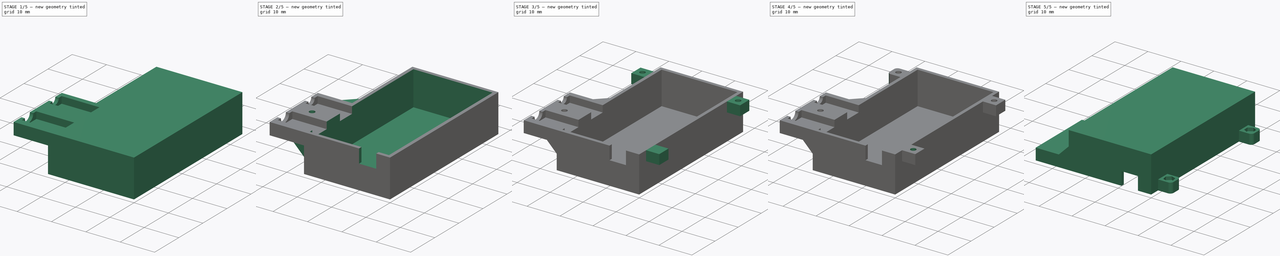
[diagram: build sequence overview — one tinted view per stage of 5, left to right]
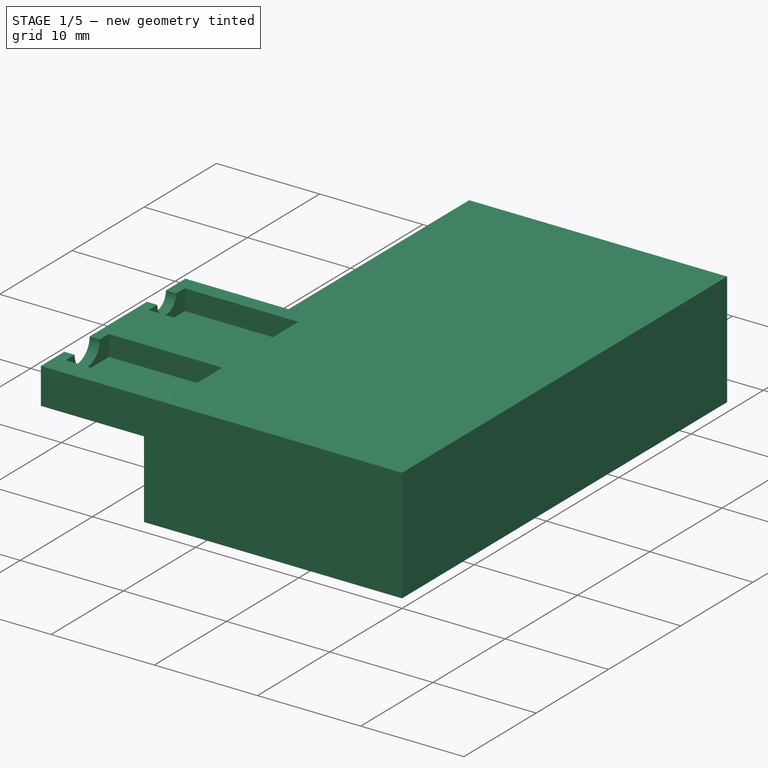
[diagram: stage 1 of 5 — iso view after this stage's code; geometry added in this stage tinted green]
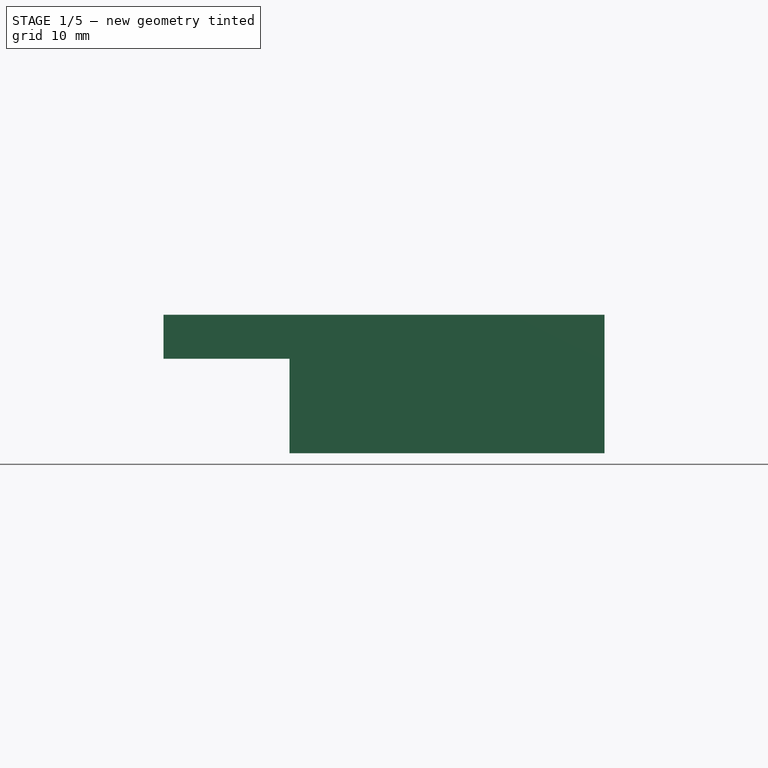
[diagram: stage 1 of 5 — front view after this stage's code; geometry added in this stage tinted green]
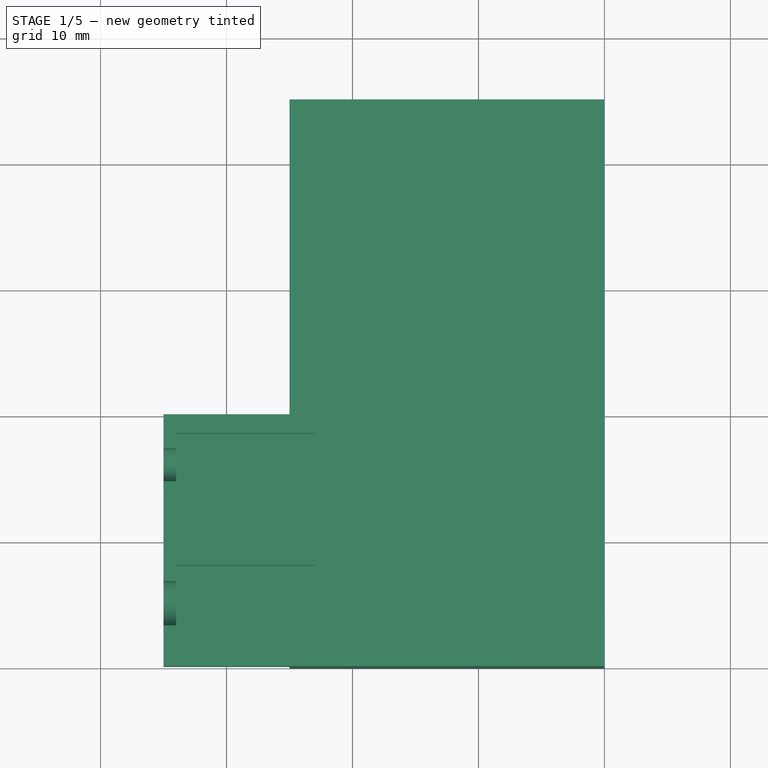
[diagram: stage 1 of 5 — top view after this stage's code; geometry added in this stage tinted green]
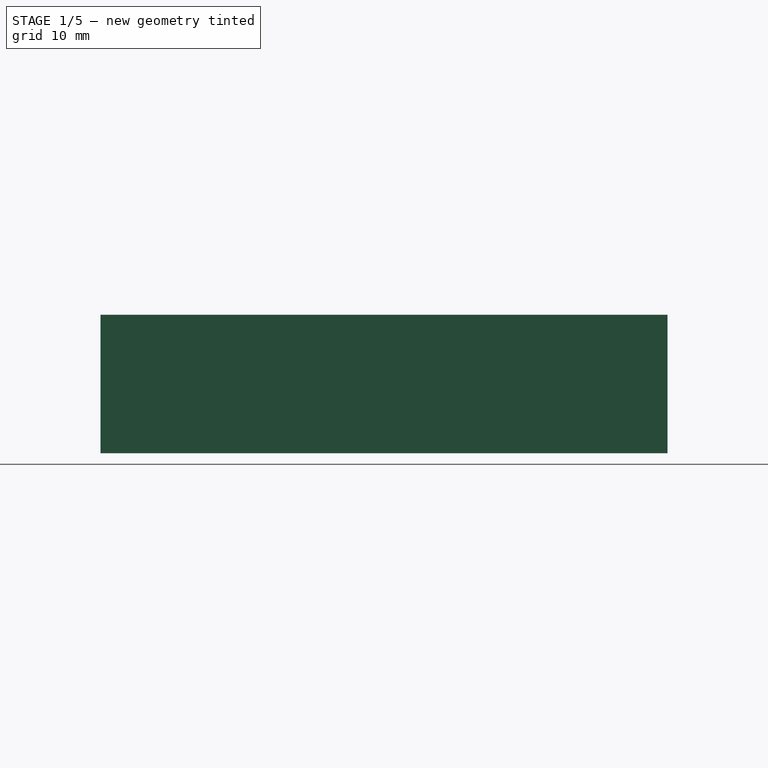
[diagram: stage 1 of 5 — right view after this stage's code; geometry added in this stage tinted green]
FCSTD DOCUMENT  (FreeCAD 0.19R)
Label: tnc_connector
License: All rights reserved
LicenseURL: http://en.wikipedia.org/wiki/All_rights_reserved
objects: Sketcher::SketchObject×15, PartDesign::Pocket×12, PartDesign::Fillet×6, PartDesign::Pad×3, PartDesign::Chamfer×2, Part::MultiFuse×1, Part::Mirroring×1
note: 63 computed .brp shape members not serialized (recipe doc carries the construction recipe); baked Part::Feature solids carry a one-line shape summary decoded from their .brp

FEATURE [Sketcher::SketchObject] Sketch
  FullyConstrained = false
  MapMode = 5
  sketch-geometry (4):
    g0: LineSegment StartX=0 StartY=0 StartZ=0 EndX=-25 EndY=0 EndZ=0
    g1: LineSegment StartX=-25 StartY=0 StartZ=0 EndX=-25 EndY=45 EndZ=0
    g2: LineSegment StartX=-25 StartY=45 StartZ=0 EndX=0 EndY=45 EndZ=0
    g3: LineSegment StartX=0 StartY=45 StartZ=0 EndX=0 EndY=0 EndZ=0
  constraints (11):
    c: Coincident(g0,g1)
    c: Coincident(g1,g2)
    c: Coincident(g2,g3)
    c: Coincident(g3,g0)
    c: Horizontal(g0)
    c: Horizontal(g2)
    c: Vertical(g1)
    c: Vertical(g3)
    c: Coincident(g0,g-1)
    c: DistanceY(g3,g3) = 45
    c: DistanceX(g0,g0) = 25
FEATURE [PartDesign::Pad] Pad
  AllowMultiFace = false
  Direction = (1,1,1)
  Length = 11
  Length2 = 100
  Profile = -> Sketch
  Type = 0
FEATURE [Sketcher::SketchObject] Sketch001
  FullyConstrained = false
  MapMode = 5
  Placement = pos=(-25,0,0) rot=(0.57735,-0.57735,-0.57735;2.0944rad)
  Support = -> [Pad]
  sketch-geometry (4):
    g0: LineSegment StartX=-20 StartY=11 StartZ=0 EndX=0 EndY=11 EndZ=0
    g1: LineSegment StartX=0 StartY=11 StartZ=0 EndX=0 EndY=7.5 EndZ=0
    g2: LineSegment StartX=0 StartY=7.5 StartZ=0 EndX=-20 EndY=7.5 EndZ=0
    g3: LineSegment StartX=-20 StartY=7.5 StartZ=0 EndX=-20 EndY=11 EndZ=0
  constraints (12):
    c: Coincident(g0,g1)
    c: Coincident(g1,g2)
    c: Coincident(g2,g3)
    c: Coincident(g3,g0)
    c: Horizontal(g0)
    c: Horizontal(g2)
    c: Vertical(g1)
    c: Vertical(g3)
    c: PointOnObject(g1,g-2)
    c: Distance(g-1,g0) = 11
    c: DistanceY(g1,g1) = 3.5
    c: DistanceX(g2,g2) = 20
FEATURE [PartDesign::Pad] Pad001
  AllowMultiFace = false
  Direction = (1,1,1)
  Length = 10
  Length2 = 100
  Profile = -> Sketch001
  Type = 0
FEATURE [Part::MultiFuse] Fusion
  Shapes = -> [Pad,Pad001]
FEATURE [Sketcher::SketchObject] Sketch002
  FullyConstrained = false
  MapMode = 5
  Placement = pos=(-35,0,0) rot=(0.57735,-0.57735,-0.57735;2.0944rad)
  Support = -> [Fusion]
  sketch-geometry (2):
    g0: Circle CenterX=-5 CenterY=11 CenterZ=0 NormalX=0 NormalY=0 NormalZ=1 AngleXU=0 Radius=1.75
    g1: Circle CenterX=-16 CenterY=11 CenterZ=0 NormalX=0 NormalY=0 NormalZ=1 AngleXU=0 Radius=1.31136
  constraints (5):
    c: DistanceX(g-2,g0) = -5
    c: DistanceY(g-1,g0) = 11
    c: Radius(g0) = 1.75
    c: Distance(g1,g0) = 11
    c: DistanceY(g-1,g1) = 11
FEATURE [PartDesign::Pocket] Pocket
  AllowMultiFace = false
  Length = 12
  Length2 = 100
  Profile = -> Sketch002
  Type = 0
FEATURE [Sketcher::SketchObject] Sketch003
  FullyConstrained = false
  MapMode = 5
  Placement = pos=(0,0,11) rot=(0,0,1;0rad)
  Support = -> [Pocket]
  expr: Constraints[21] = -34
  sketch-geometry (8):
    g0: LineSegment StartX=-34 StartY=18.5 StartZ=0 EndX=-23 EndY=18.5 EndZ=0
    g1: LineSegment StartX=-23 StartY=18.5 StartZ=0 EndX=-23 EndY=13.5 EndZ=0
    g2: LineSegment StartX=-23 StartY=13.5 StartZ=0 EndX=-34 EndY=13.5 EndZ=0
    g3: LineSegment StartX=-34 StartY=13.5 StartZ=0 EndX=-34 EndY=18.5 EndZ=0
    g4: LineSegment StartX=-34 StartY=8 StartZ=0 EndX=-23 EndY=8 EndZ=0
    g5: LineSegment StartX=-23 StartY=8 StartZ=0 EndX=-23 EndY=2 EndZ=0
    g6: LineSegment StartX=-23 StartY=2 StartZ=0 EndX=-34 EndY=2 EndZ=0
    g7: LineSegment StartX=-34 StartY=2 StartZ=0 EndX=-34 EndY=8 EndZ=0
  constraints (24):
    c: Coincident(g0,g1)
    c: Coincident(g1,g2)
    c: Coincident(g2,g3)
    c: Coincident(g3,g0)
    c: Horizontal(g0)
    c: Horizontal(g2)
    c: Vertical(g1)
    c: Vertical(g3)
    c: Coincident(g4,g5)
    c: Coincident(g5,g6)
    c: Coincident(g6,g7)
    c: Coincident(g7,g4)
    c: Horizontal(g4)
    c: Horizontal(g6)
    c: Vertical(g5)
    c: Vertical(g7)
    c: DistanceY(g5,g5) = 6
    c: DistanceY(g1,g1) = 5
    c: DistanceX(g4,g4) = 11
    c: DistanceX(g0,g0) = 11
    c: DistanceX(g6,g-1) = 34
    c: DistanceX(g-2,g2) = -34
    c: DistanceY(g-1,g5) = 2
    c: DistanceY(g-1,g2) = 13.5
FEATURE [PartDesign::Pocket] Pocket001
  AllowMultiFace = false
  Length = 2
  Length2 = 100
  Profile = -> Sketch003
  Type = 0
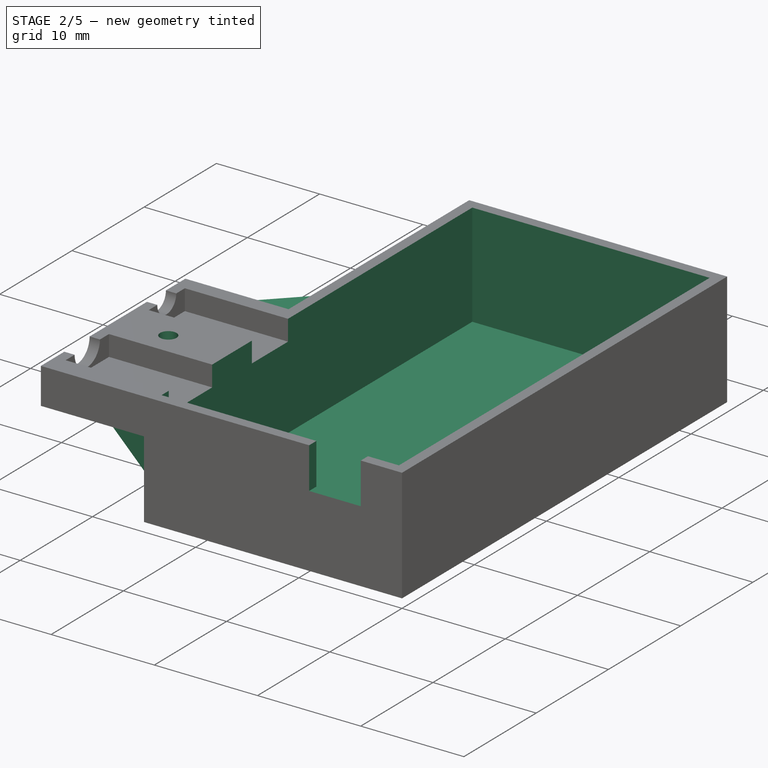
[diagram: stage 2 of 5 — iso view after this stage's code; geometry added in this stage tinted green]
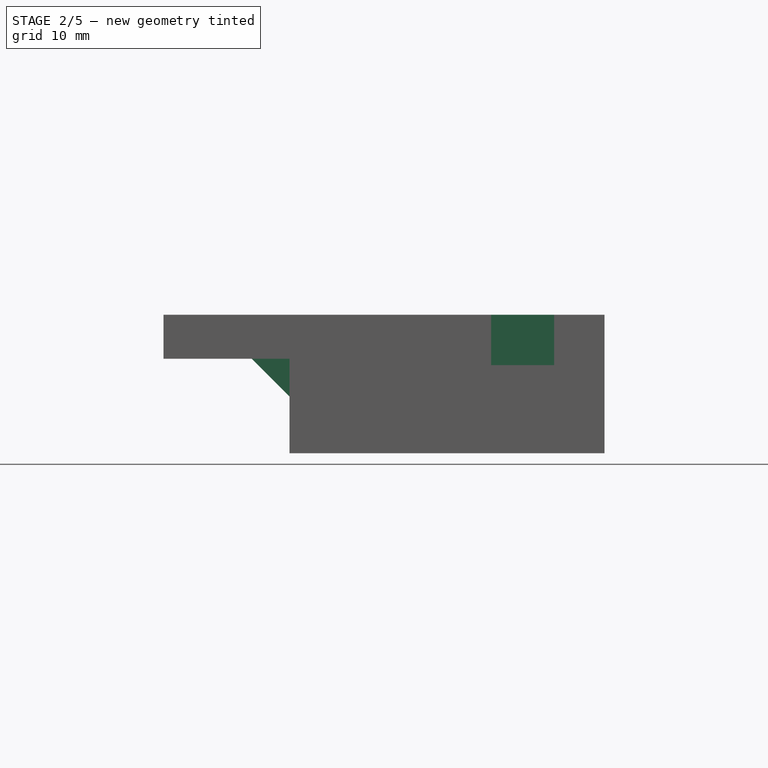
[diagram: stage 2 of 5 — front view after this stage's code; geometry added in this stage tinted green]
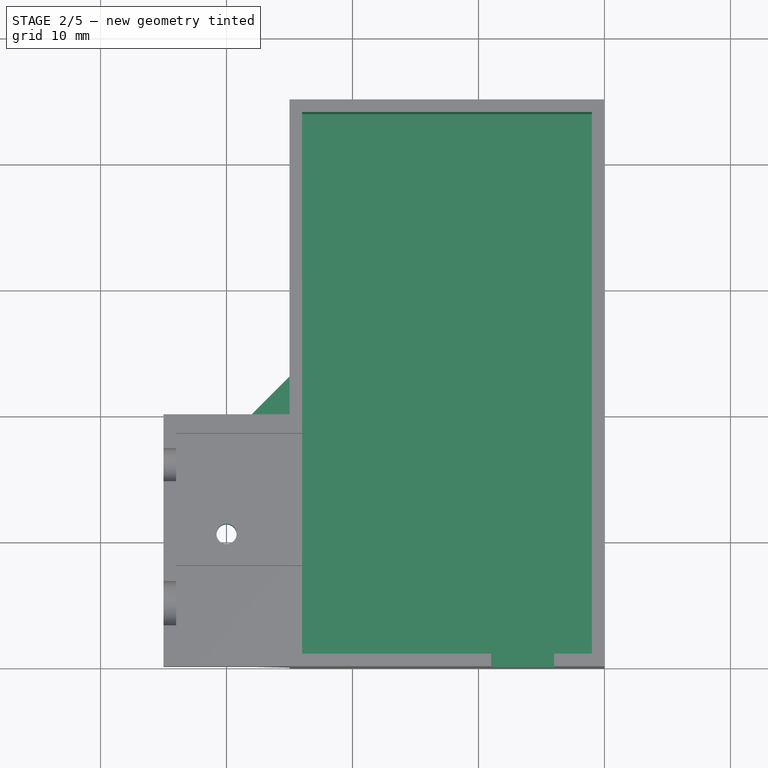
[diagram: stage 2 of 5 — top view after this stage's code; geometry added in this stage tinted green]
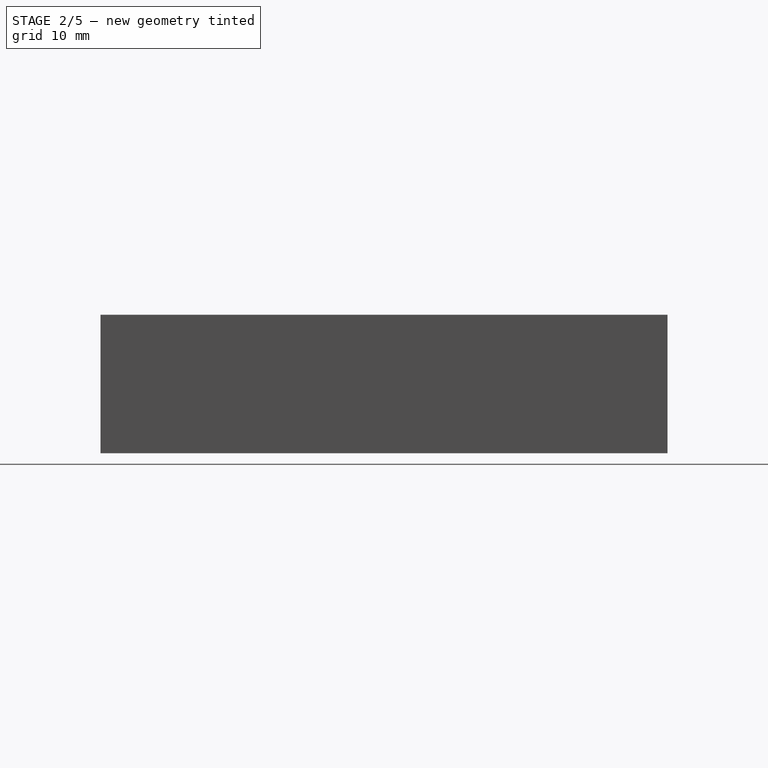
[diagram: stage 2 of 5 — right view after this stage's code; geometry added in this stage tinted green]
FEATURE [Sketcher::SketchObject] Sketch005
  FullyConstrained = false
  MapMode = 5
  Placement = pos=(0,0,11) rot=(0,0,1;0rad)
  Support = -> [Pocket001]
  sketch-geometry (4):
    g0: LineSegment StartX=-24 StartY=44 StartZ=0 EndX=-1 EndY=44 EndZ=0
    g1: LineSegment StartX=-1 StartY=44 StartZ=0 EndX=-1 EndY=1 EndZ=0
    g2: LineSegment StartX=-1 StartY=1 StartZ=0 EndX=-24 EndY=1 EndZ=0
    g3: LineSegment StartX=-24 StartY=1 StartZ=0 EndX=-24 EndY=44 EndZ=0
  constraints (12):
    c: Coincident(g0,g1)
    c: Coincident(g1,g2)
    c: Coincident(g2,g3)
    c: Coincident(g3,g0)
    c: Horizontal(g0)
    c: Horizontal(g2)
    c: Vertical(g1)
    c: Vertical(g3)
    c: DistanceY(g-1,g1) = 1
    c: DistanceX(g-2,g1) = -1
    c: Distance(g2) = 23
    c: Distance(g1) = 43
FEATURE [PartDesign::Pocket] Pocket002
  AllowMultiFace = false
  Length = 10
  Length2 = 100
  Profile = -> Sketch005
  Type = 0
FEATURE [PartDesign::Chamfer] Chamfer
  Angle = 45
  Base = -> Pocket002 [Edge16]
  ChamferType = 0
  FlipDirection = false
  Size = 3
  Size2 = 1
  SupportTransform = false
FEATURE [PartDesign::Chamfer] Chamfer001
  Angle = 45
  Base = -> Chamfer [Edge28,Edge26]
  ChamferType = 0
  FlipDirection = false
  Size = 3
  Size2 = 1
  SupportTransform = false
FEATURE [Sketcher::SketchObject] Sketch006
  FullyConstrained = false
  MapMode = 5
  Placement = pos=(0,0,0) rot=(1,0,0;1.5708rad)
  Support = -> [Chamfer001]
  sketch-geometry (4):
    g0: LineSegment StartX=-9 StartY=11 StartZ=0 EndX=-4 EndY=11 EndZ=0
    g1: LineSegment StartX=-4 StartY=11 StartZ=0 EndX=-4 EndY=7 EndZ=0
    g2: LineSegment StartX=-4 StartY=7 StartZ=0 EndX=-9 EndY=7 EndZ=0
    g3: LineSegment StartX=-9 StartY=7 StartZ=0 EndX=-9 EndY=11 EndZ=0
  constraints (12):
    c: Coincident(g0,g1)
    c: Coincident(g1,g2)
    c: Coincident(g2,g3)
    c: Coincident(g3,g0)
    c: Horizontal(g0)
    c: Horizontal(g2)
    c: Vertical(g1)
    c: Vertical(g3)
    c: DistanceX(g-2,g2) = -9
    c: DistanceX(g0,g0) = 5
    c: DistanceY(g1,g1) = 4
    c: DistanceY(g-1,g0) = 11
FEATURE [PartDesign::Pocket] Pocket003
  AllowMultiFace = false
  Length = 1
  Length2 = 100
  Profile = -> Sketch006
  Type = 0
FEATURE [Sketcher::SketchObject] Sketch007
  FullyConstrained = false
  MapMode = 5
  Placement = pos=(0,0,11) rot=(0,0,1;0rad)
  Support = -> [Pocket003]
  sketch-geometry (1):
    g0: Circle CenterX=-30 CenterY=10.5 CenterZ=0 NormalX=0 NormalY=0 NormalZ=1 AngleXU=0 Radius=0.8
  constraints (3):
    c: Radius(g0) = 0.8
    c: DistanceY(g-1,g0) = 10.5
    c: DistanceX(g-2,g0) = -30
FEATURE [PartDesign::Pocket] Pocket004
  AllowMultiFace = false
  Length = 5
  Length2 = 100
  Profile = -> Sketch007
  Type = 0
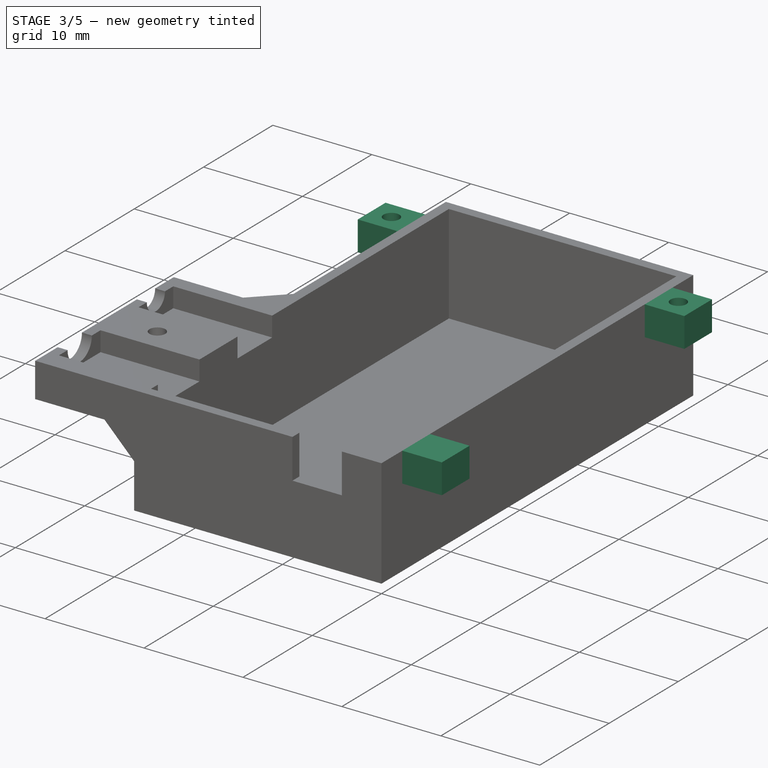
[diagram: stage 3 of 5 — iso view after this stage's code; geometry added in this stage tinted green]
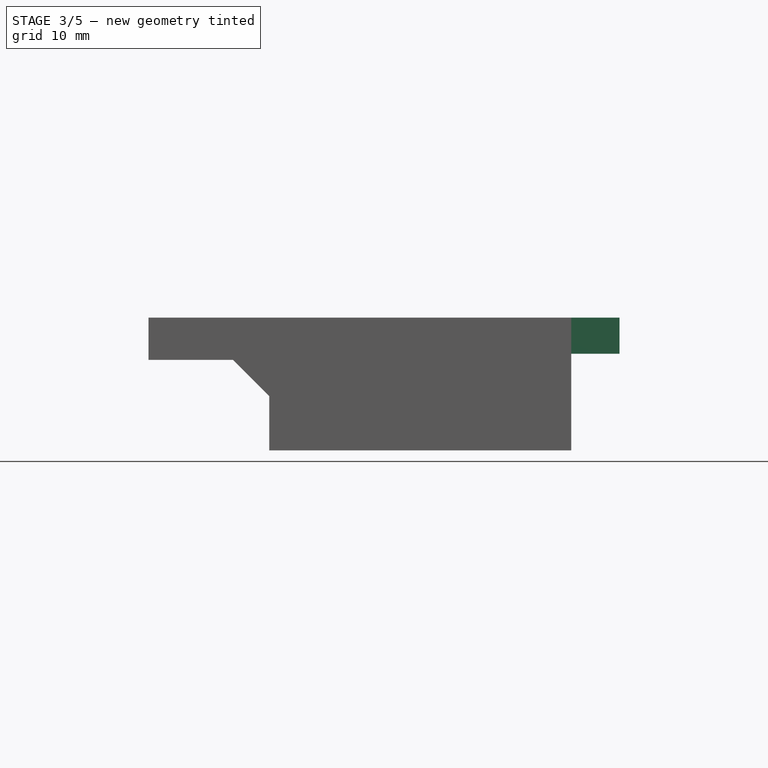
[diagram: stage 3 of 5 — front view after this stage's code; geometry added in this stage tinted green]
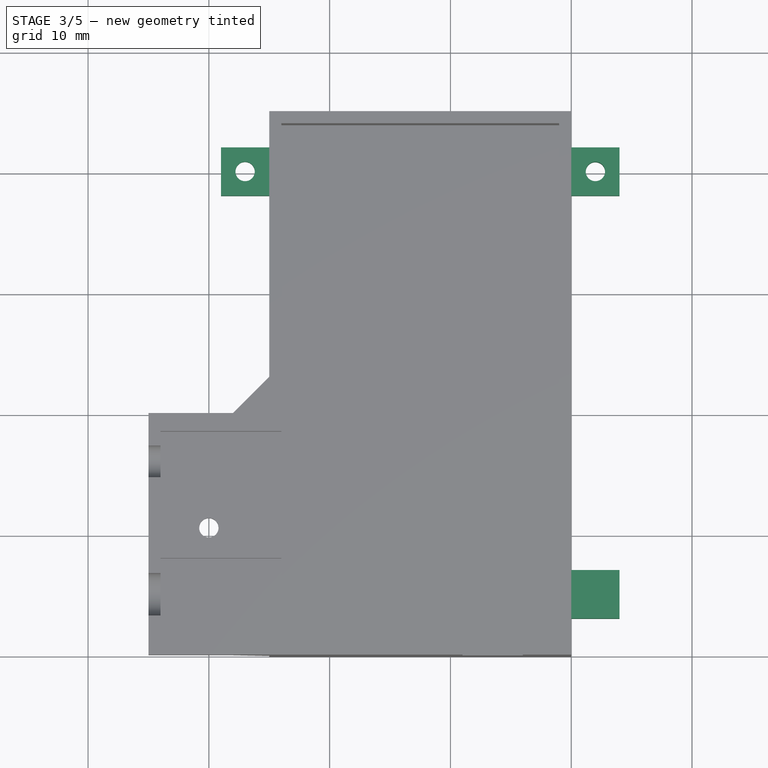
[diagram: stage 3 of 5 — top view after this stage's code; geometry added in this stage tinted green]
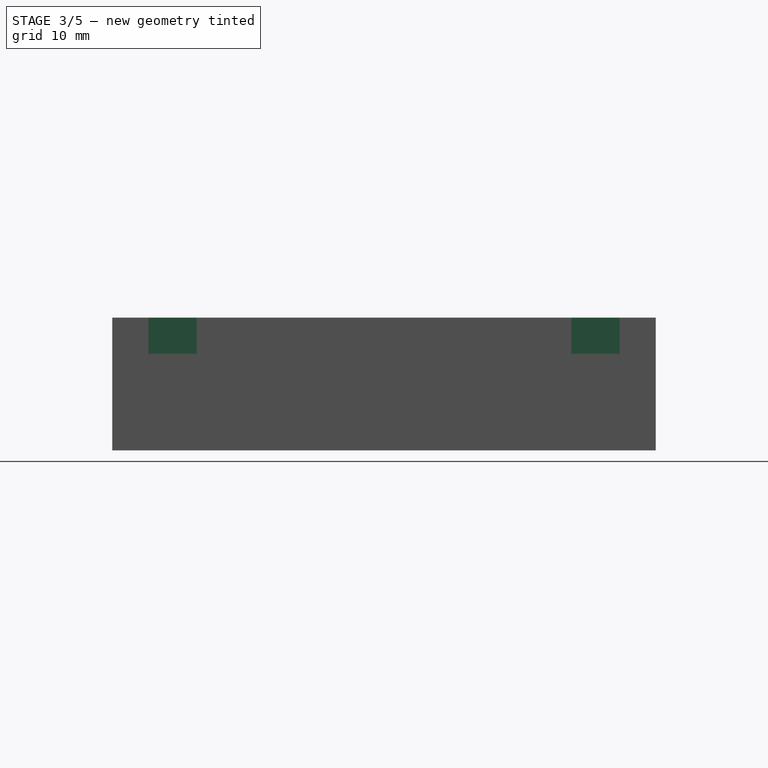
[diagram: stage 3 of 5 — right view after this stage's code; geometry added in this stage tinted green]
FEATURE [Sketcher::SketchObject] Sketch008
  FullyConstrained = false
  MapMode = 5
  Placement = pos=(0,0,7.5) rot=(1,0,0;3.14159rad)
  Support = -> [Pocket004]
  sketch-geometry (7):
    g0: LineSegment StartX=-29.0478 StartY=-12 StartZ=0 EndX=-28.2249 EndY=-10.4254 EndZ=0
    g1: LineSegment StartX=-28.2249 StartY=-10.4254 StartZ=0 EndX=-29.1771 EndY=-8.92538 EndZ=0
    g2: LineSegment StartX=-29.1771 StartY=-8.92538 StartZ=0 EndX=-30.9522 EndY=-9 EndZ=0
    g3: LineSegment StartX=-30.9522 StartY=-9 StartZ=0 EndX=-31.7751 EndY=-10.5746 EndZ=0
    g4: LineSegment StartX=-31.7751 StartY=-10.5746 StartZ=0 EndX=-30.8229 EndY=-12.0746 EndZ=0
    g5: LineSegment StartX=-30.8229 StartY=-12.0746 StartZ=0 EndX=-29.0478 EndY=-12 EndZ=0
    g6: Circle CenterX=-30 CenterY=-10.5 CenterZ=0 NormalX=0 NormalY=0 NormalZ=1 AngleXU=0 Radius=1.7767
  constraints (16):
    c: Coincident(g0,g1)
    c: Coincident(g1,g2)
    c: Coincident(g2,g3)
    c: Coincident(g3,g4)
    c: Coincident(g4,g5)
    c: Coincident(g5,g0)
    c: Equal(g0, g1-g5) x5
    c: PointOnObject(g0,g6)
    c: PointOnObject(g1,g6)
    c: PointOnObject(g2,g6)
    c: PointOnObject(g3,g6)
    c: PointOnObject(g4,g6)
    c: PointOnObject(g5,g6)
    c: DistanceY(g-1,g6) = -10.5
    c: DistanceX(g-2,g6) = -30
    c: DistanceY(g1,g1) = 1.5
FEATURE [PartDesign::Pocket] Pocket005
  AllowMultiFace = false
  Length = 2
  Length2 = 100
  Profile = -> Sketch008
  Type = 0
FEATURE [Sketcher::SketchObject] Sketch009
  FullyConstrained = false
  MapMode = 5
  Placement = pos=(0,0,11) rot=(0,0,1;0rad)
  Support = -> [Pocket005]
  sketch-geometry (12):
    g0: LineSegment StartX=-29 StartY=42 StartZ=0 EndX=-25 EndY=42 EndZ=0
    g1: LineSegment StartX=-25 StartY=42 StartZ=0 EndX=-25 EndY=38 EndZ=0
    g2: LineSegment StartX=-25 StartY=38 StartZ=0 EndX=-29 EndY=38 EndZ=0
    g3: LineSegment StartX=-29 StartY=38 StartZ=0 EndX=-29 EndY=42 EndZ=0
    g4: LineSegment StartX=0 StartY=42 StartZ=0 EndX=4 EndY=42 EndZ=0
    g5: LineSegment StartX=4 StartY=42 StartZ=0 EndX=4 EndY=38 EndZ=0
    g6: LineSegment StartX=4 StartY=38 StartZ=0 EndX=0 EndY=38 EndZ=0
    g7: LineSegment StartX=0 StartY=38 StartZ=0 EndX=0 EndY=42 EndZ=0
    g8: LineSegment StartX=0 StartY=7 StartZ=0 EndX=4 EndY=7 EndZ=0
    g9: LineSegment StartX=4 StartY=7 StartZ=0 EndX=4 EndY=3 EndZ=0
    g10: LineSegment StartX=4 StartY=3 StartZ=0 EndX=0 EndY=3 EndZ=0
    g11: LineSegment StartX=0 StartY=3 StartZ=0 EndX=0 EndY=7 EndZ=0
  constraints (36):
    c: Coincident(g0,g1)
    c: Coincident(g1,g2)
    c: Coincident(g2,g3)
    c: Coincident(g3,g0)
    c: Horizontal(g0)
    c: Horizontal(g2)
    c: Vertical(g1)
    c: Vertical(g3)
    c: Coincident(g4,g5)
    c: Coincident(g5,g6)
    c: Coincident(g6,g7)
    c: Coincident(g7,g4)
    c: Horizontal(g4)
    c: Horizontal(g6)
    c: Vertical(g5)
    c: Vertical(g7)
    c: PointOnObject(g4,g-2)
    c: Coincident(g8,g9)
    c: Coincident(g9,g10)
    c: Coincident(g10,g11)
    c: Coincident(g11,g8)
    c: Horizontal(g8)
    c: Horizontal(g10)
    c: Vertical(g9)
    c: Vertical(g11)
    c: PointOnObject(g8,g-2)
    c: DistanceX(g0,g0) = 4
    c: Distance(g3) = 4
    c: Distance(g4) = 4
    c: Distance(g5) = 4
    c: Distance(g8) = 4
    c: Distance(g9) = 4
    c: DistanceY(g-1,g4) = 42
    c: DistanceX(g-2,g0) = -25
    c: DistanceY(g-1,g1) = 38
    c: DistanceY(g-1,g9) = 3
FEATURE [PartDesign::Pad] Pad002
  AllowMultiFace = false
  Direction = (1,1,1)
  Length = 3
  Length2 = 100
  Profile = -> Sketch009
  Reversed = true
  Type = 0
FEATURE [Sketcher::SketchObject] Sketch010
  FullyConstrained = false
  MapMode = 5
  Placement = pos=(0,0,11) rot=(0,0,1;0rad)
  Support = -> [Pad002]
  sketch-geometry (1):
    g0: Circle CenterX=-27 CenterY=40 CenterZ=0 NormalX=0 NormalY=0 NormalZ=1 AngleXU=0 Radius=0.8
  constraints (3):
    c: Radius(g0) = 0.8
    c: DistanceX(g-2,g0) = -27
    c: DistanceY(g-1,g0) = 40
FEATURE [PartDesign::Pocket] Pocket006
  AllowMultiFace = false
  Length = 5
  Length2 = 100
  Profile = -> Sketch010
  Type = 0
FEATURE [Sketcher::SketchObject] Sketch011
  FullyConstrained = false
  MapMode = 5
  Placement = pos=(0,0,8) rot=(1,0,0;3.14159rad)
  Support = -> [Pocket006]
  sketch-geometry (7):
    g0: LineSegment StartX=-25.5204 StartY=-40.2465 StartZ=0 EndX=-26.0467 EndY=-38.8419 EndZ=0
    g1: LineSegment StartX=-26.0467 StartY=-38.8419 StartZ=0 EndX=-27.5263 EndY=-38.5954 EndZ=0
    g2: LineSegment StartX=-27.5263 StartY=-38.5954 StartZ=0 EndX=-28.4796 EndY=-39.7535 EndZ=0
    g3: LineSegment StartX=-28.4796 StartY=-39.7535 StartZ=0 EndX=-27.9533 EndY=-41.1581 EndZ=0
    g4: LineSegment StartX=-27.9533 StartY=-41.1581 StartZ=0 EndX=-26.4737 EndY=-41.4046 EndZ=0
    g5: LineSegment StartX=-26.4737 StartY=-41.4046 StartZ=0 EndX=-25.5204 EndY=-40.2465 EndZ=0
    g6: Circle CenterX=-27 CenterY=-40 CenterZ=0 NormalX=0 NormalY=0 NormalZ=1 AngleXU=0 Radius=1.5
  constraints (16):
    c: Coincident(g0,g1)
    c: Coincident(g1,g2)
    c: Coincident(g2,g3)
    c: Coincident(g3,g4)
    c: Coincident(g4,g5)
    c: Coincident(g5,g0)
    c: Equal(g0, g1-g5) x5
    c: PointOnObject(g0,g6)
    c: PointOnObject(g1,g6)
    c: PointOnObject(g2,g6)
    c: PointOnObject(g3,g6)
    c: PointOnObject(g4,g6)
    c: PointOnObject(g5,g6)
    c: DistanceX(g-2,g6) = -27
    c: Distance(g1) = 1.5
    c: DistanceY(g-1,g6) = -40
FEATURE [PartDesign::Pocket] Pocket007
  AllowMultiFace = false
  Length = 1
  Length2 = 100
  Profile = -> Sketch011
  Type = 0
FEATURE [Sketcher::SketchObject] Sketch012
  FullyConstrained = false
  MapMode = 5
  Placement = pos=(0,0,11) rot=(0,0,1;0rad)
  Support = -> [Pocket007]
  sketch-geometry (1):
    g0: Circle CenterX=2 CenterY=40 CenterZ=0 NormalX=0 NormalY=0 NormalZ=1 AngleXU=0 Radius=0.8
  constraints (3):
    c: Radius(g0) = 0.8
    c: DistanceX(g-2,g0) = 2
    c: DistanceY(g-1,g0) = 40
FEATURE [PartDesign::Pocket] Pocket008
  AllowMultiFace = false
  Length = 5
  Length2 = 100
  Profile = -> Sketch012
  Type = 0
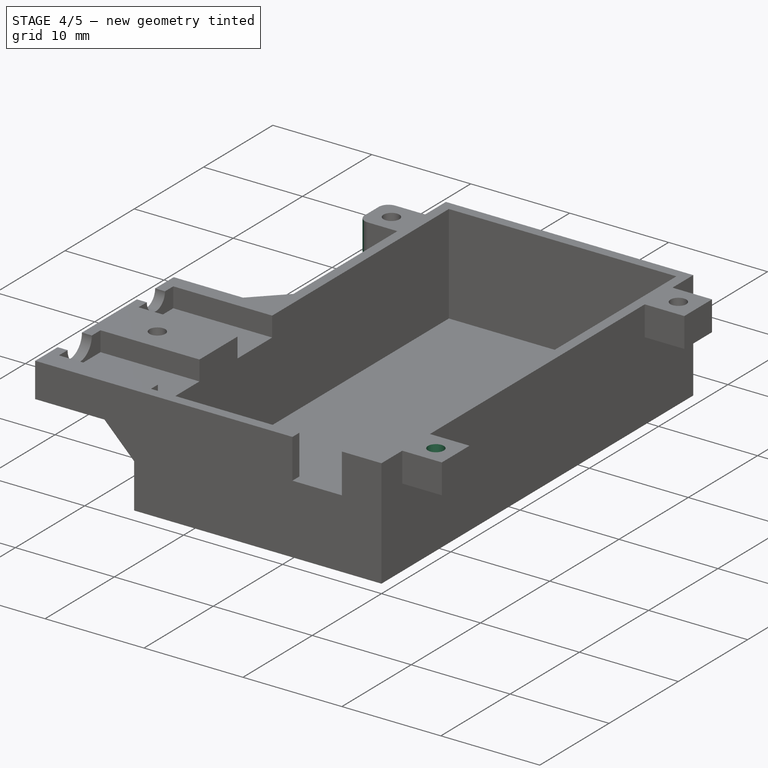
[diagram: stage 4 of 5 — iso view after this stage's code; geometry added in this stage tinted green]
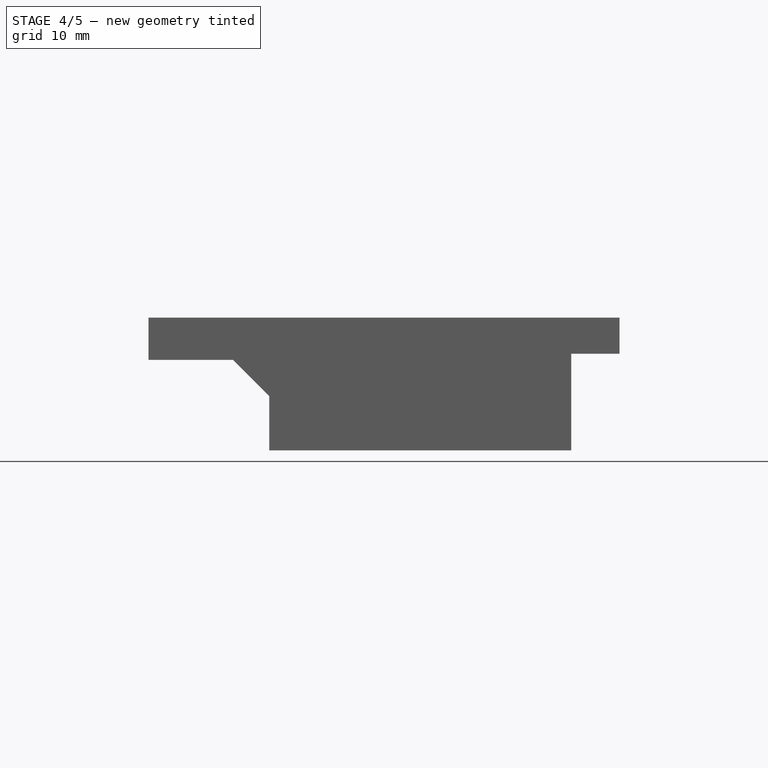
[diagram: stage 4 of 5 — front view after this stage's code; geometry added in this stage tinted green]
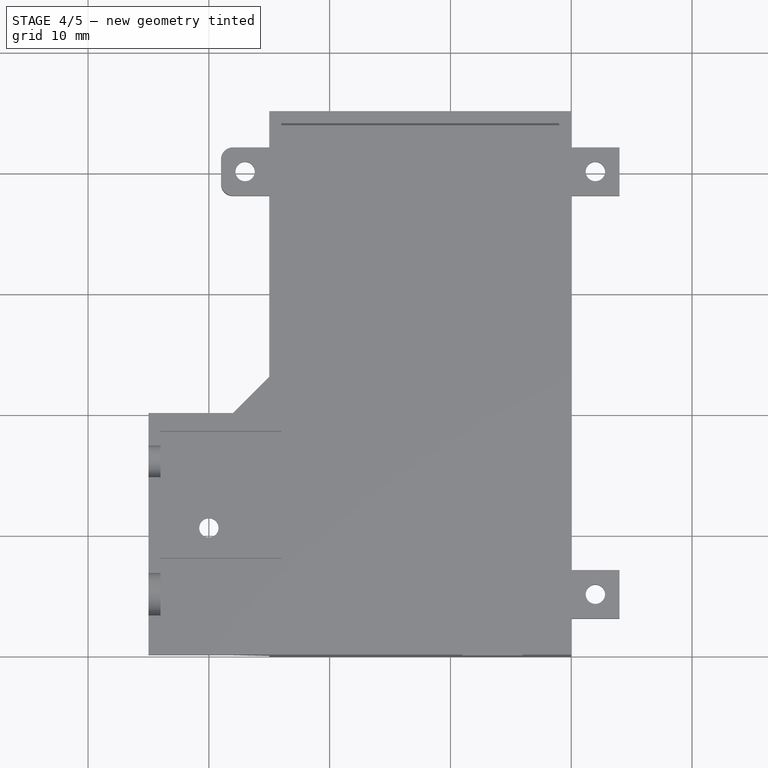
[diagram: stage 4 of 5 — top view after this stage's code; geometry added in this stage tinted green]
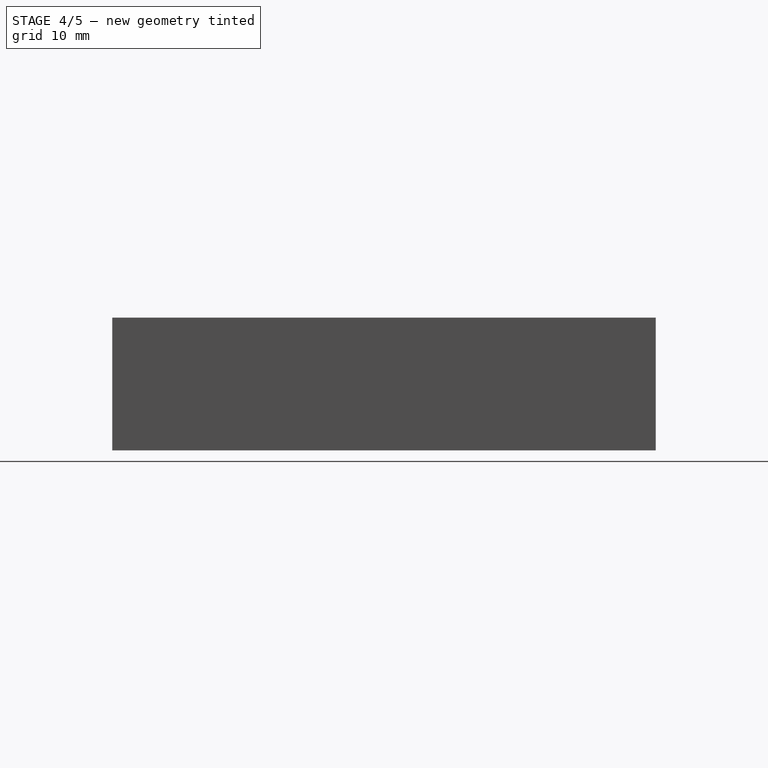
[diagram: stage 4 of 5 — right view after this stage's code; geometry added in this stage tinted green]
FEATURE [Sketcher::SketchObject] Sketch013
  FullyConstrained = false
  MapMode = 5
  Placement = pos=(0,0,8) rot=(1,0,0;3.14159rad)
  Support = -> [Pocket008]
  sketch-geometry (7):
    g0: LineSegment StartX=3.28953 StartY=-40.7662 StartZ=0 EndX=3.30834 EndY=-39.2663 EndZ=0
    g1: LineSegment StartX=3.30834 StartY=-39.2663 StartZ=0 EndX=2.01881 EndY=-38.5001 EndZ=0
    g2: LineSegment StartX=2.01881 StartY=-38.5001 StartZ=0 EndX=0.710467 EndY=-39.2338 EndZ=0
    g3: LineSegment StartX=0.710467 StartY=-39.2338 StartZ=0 EndX=0.691661 EndY=-40.7337 EndZ=0
    g4: LineSegment StartX=0.691661 StartY=-40.7337 StartZ=0 EndX=1.98119 EndY=-41.4999 EndZ=0
    g5: LineSegment StartX=1.98119 StartY=-41.4999 StartZ=0 EndX=3.28953 EndY=-40.7662 EndZ=0
    g6: Circle CenterX=2 CenterY=-40 CenterZ=0 NormalX=0 NormalY=0 NormalZ=1 AngleXU=0 Radius=1.5
  constraints (16):
    c: Coincident(g0,g1)
    c: Coincident(g1,g2)
    c: Coincident(g2,g3)
    c: Coincident(g3,g4)
    c: Coincident(g4,g5)
    c: Coincident(g5,g0)
    c: Equal(g0, g1-g5) x5
    c: PointOnObject(g0,g6)
    c: PointOnObject(g1,g6)
    c: PointOnObject(g2,g6)
    c: PointOnObject(g3,g6)
    c: PointOnObject(g4,g6)
    c: PointOnObject(g5,g6)
    c: DistanceX(g-2,g6) = 2
    c: DistanceY(g-1,g6) = -40
    c: Distance(g5) = 1.5
FEATURE [PartDesign::Pocket] Pocket009
  AllowMultiFace = false
  Length = 1
  Length2 = 100
  Profile = -> Sketch013
  Type = 0
FEATURE [Sketcher::SketchObject] Sketch014
  FullyConstrained = false
  MapMode = 5
  Placement = pos=(0,0,11) rot=(0,0,1;0rad)
  Support = -> [Pocket009]
  sketch-geometry (1):
    g0: Circle CenterX=2 CenterY=5 CenterZ=0 NormalX=0 NormalY=0 NormalZ=1 AngleXU=0 Radius=0.8
  constraints (3):
    c: Radius(g0) = 0.8
    c: DistanceX(g-2,g0) = 2
    c: DistanceY(g-1,g0) = 5
FEATURE [PartDesign::Pocket] Pocket010
  AllowMultiFace = false
  Length = 5
  Length2 = 100
  Profile = -> Sketch014
  Type = 0
FEATURE [Sketcher::SketchObject] Sketch015
  FullyConstrained = false
  MapMode = 5
  Placement = pos=(0,0,8) rot=(1,0,0;3.14159rad)
  Support = -> [Pocket010]
  sketch-geometry (7):
    g0: LineSegment StartX=3.13348 StartY=-5.98245 StartZ=0 EndX=3.41757 EndY=-4.5096 EndZ=0
    g1: LineSegment StartX=3.41757 StartY=-4.5096 StartZ=0 EndX=2.28409 EndY=-3.52715 EndZ=0
    g2: LineSegment StartX=2.28409 StartY=-3.52715 StartZ=0 EndX=0.866516 EndY=-4.01755 EndZ=0
    g3: LineSegment StartX=0.866516 StartY=-4.01755 StartZ=0 EndX=0.582429 EndY=-5.4904 EndZ=0
    g4: LineSegment StartX=0.582429 StartY=-5.4904 StartZ=0 EndX=1.71591 EndY=-6.47285 EndZ=0
    g5: LineSegment StartX=1.71591 StartY=-6.47285 StartZ=0 EndX=3.13348 EndY=-5.98245 EndZ=0
    g6: Circle CenterX=2 CenterY=-5 CenterZ=0 NormalX=0 NormalY=0 NormalZ=1 AngleXU=0 Radius=1.5
  constraints (16):
    c: Coincident(g0,g1)
    c: Coincident(g1,g2)
    c: Coincident(g2,g3)
    c: Coincident(g3,g4)
    c: Coincident(g4,g5)
    c: Coincident(g5,g0)
    c: Equal(g0, g1-g5) x5
    c: PointOnObject(g0,g6)
    c: PointOnObject(g1,g6)
    c: PointOnObject(g2,g6)
    c: PointOnObject(g3,g6)
    c: PointOnObject(g4,g6)
    c: PointOnObject(g5,g6)
    c: DistanceY(g-1,g6) = -5
    c: DistanceX(g-2,g6) = 2
    c: Distance(g1) = 1.5
FEATURE [PartDesign::Pocket] Pocket011
  AllowMultiFace = false
  Length = 1
  Length2 = 100
  Profile = -> Sketch015
  Type = 0
FEATURE [PartDesign::Fillet] Fillet
  Base = -> Pocket011 [Edge88]
  Radius = 1
  SupportTransform = false
FEATURE [PartDesign::Fillet] Fillet001
  Base = -> Fillet [Edge14]
  Radius = 1
  SupportTransform = false
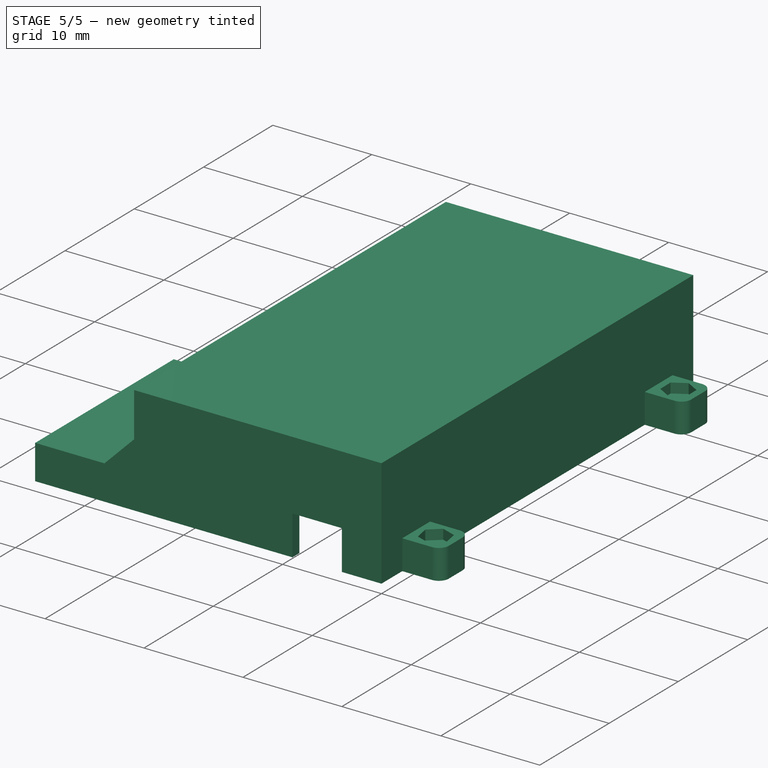
[diagram: stage 5 of 5 — iso view after this stage's code; geometry added in this stage tinted green]
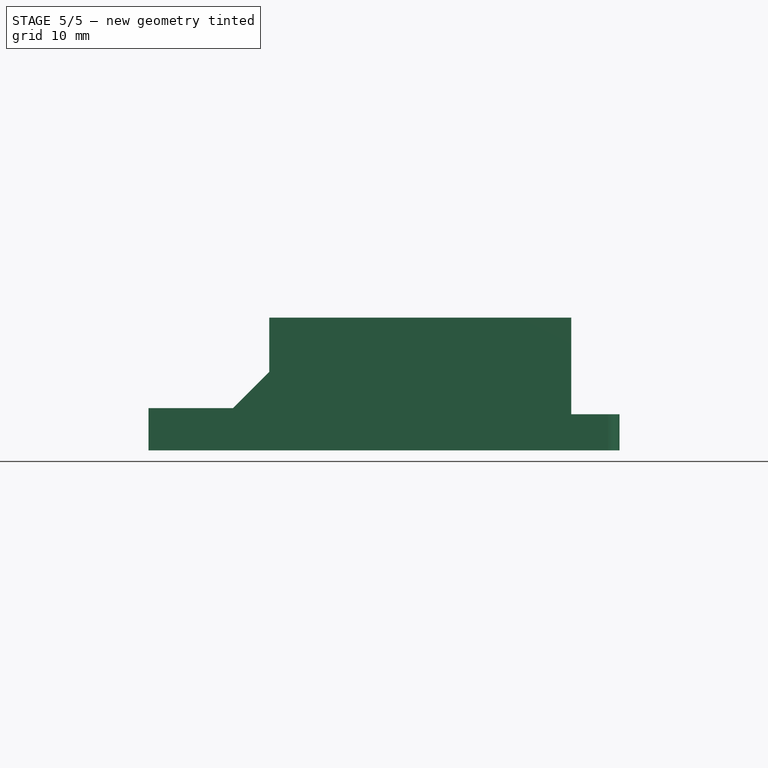
[diagram: stage 5 of 5 — front view after this stage's code; geometry added in this stage tinted green]
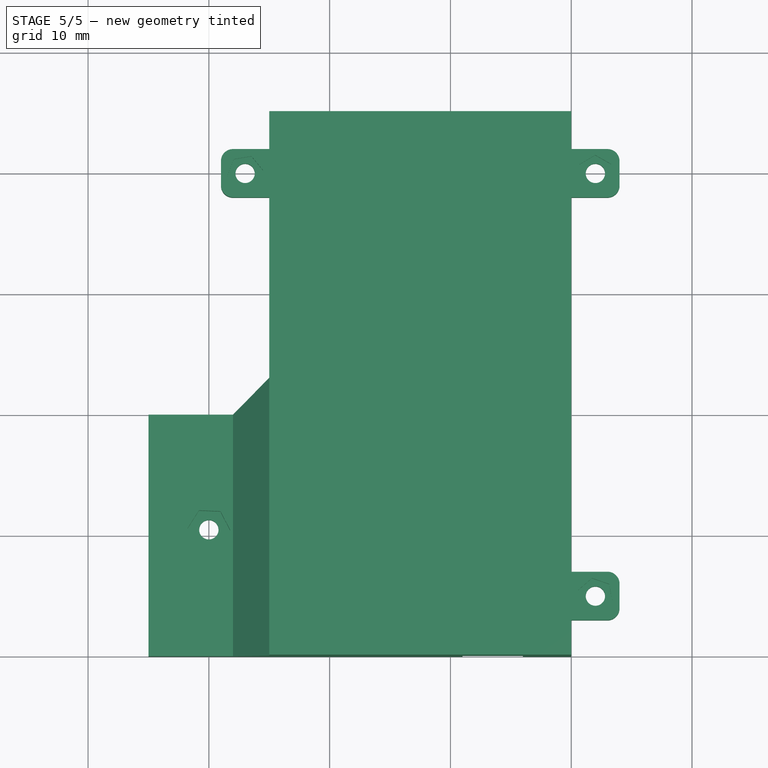
[diagram: stage 5 of 5 — top view after this stage's code; geometry added in this stage tinted green]
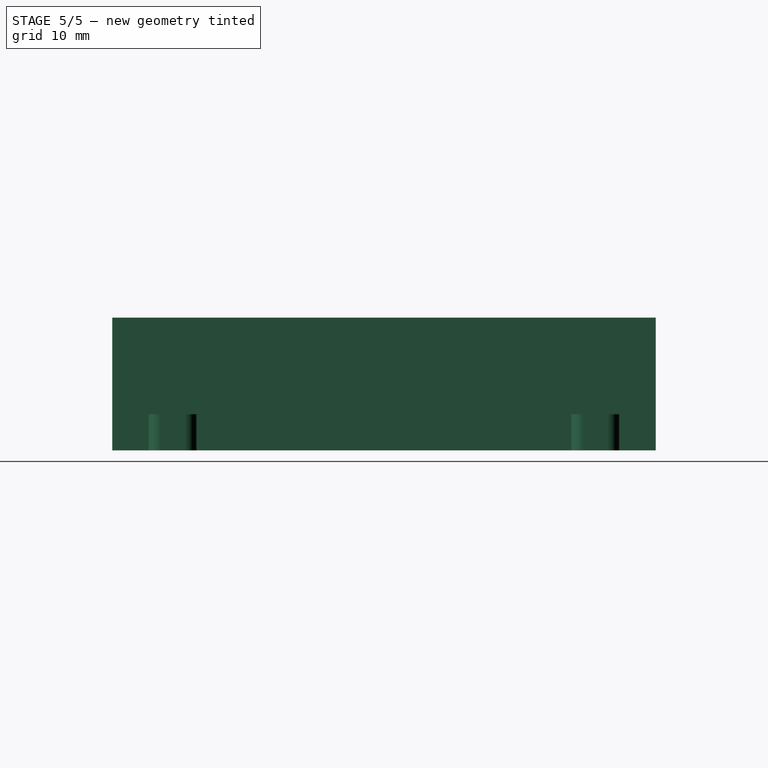
[diagram: stage 5 of 5 — right view after this stage's code; geometry added in this stage tinted green]
FEATURE [PartDesign::Fillet] Fillet002
  Base = -> Fillet001 [Edge186]
  Radius = 1
  SupportTransform = false
FEATURE [PartDesign::Fillet] Fillet003
  Base = -> Fillet002 [Edge29]
  Radius = 1
  SupportTransform = false
FEATURE [PartDesign::Fillet] Fillet004
  Base = -> Fillet003 [Edge130]
  Radius = 1
  SupportTransform = false
FEATURE [PartDesign::Fillet] Fillet005
  Base = -> Fillet004 [Edge29]
  Radius = 1
  SupportTransform = false
FEATURE [Part::Mirroring] Part__Mirroring  label="Fillet005 (Mirror #1)"
  Base = (0,0,20)
  Normal = (0,0,1)
  Source = -> Fillet005
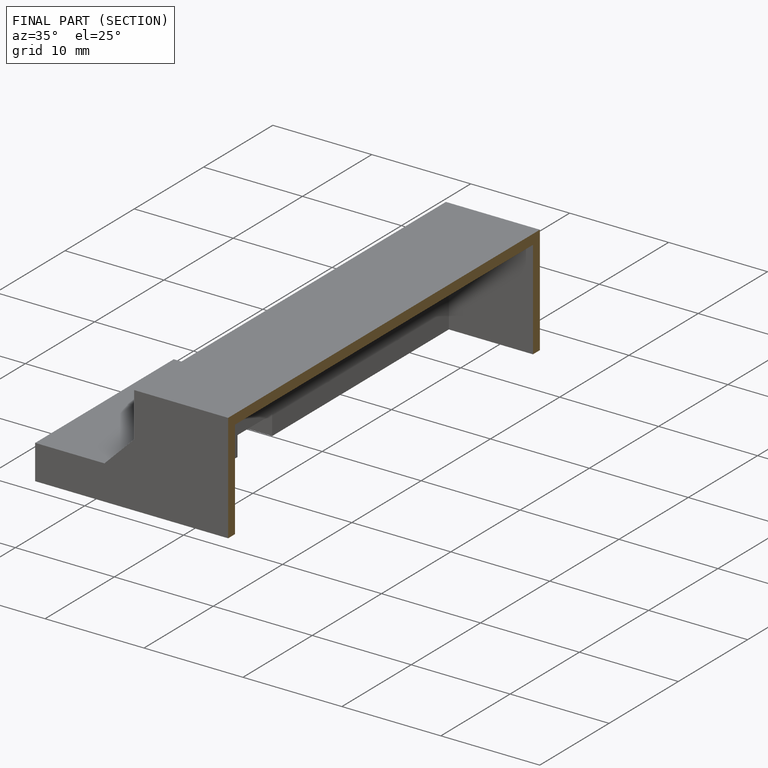
[diagram: finished part — half-section view (interior)]
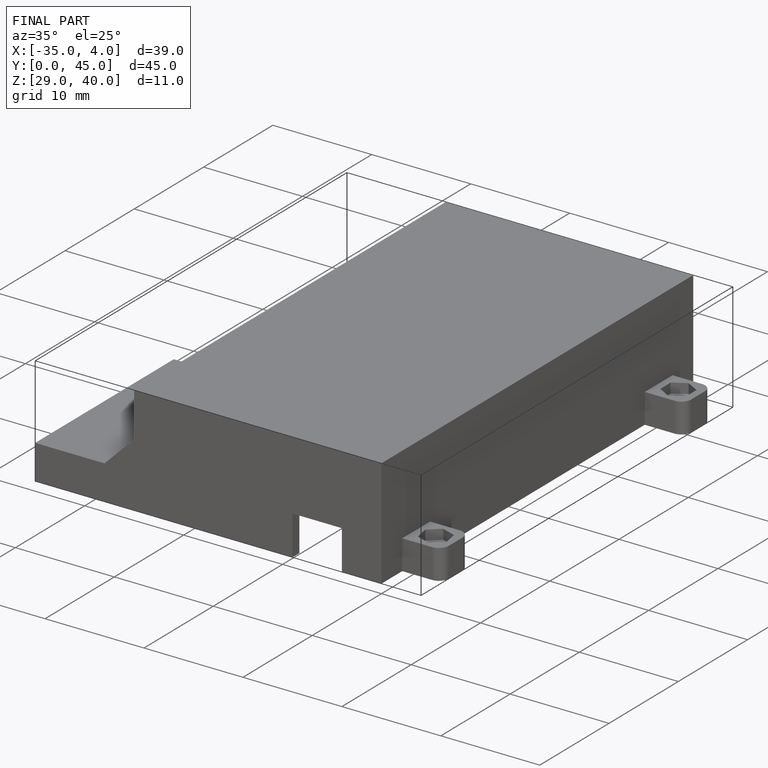
[diagram: finished part — iso view with bounding-box wireframe]
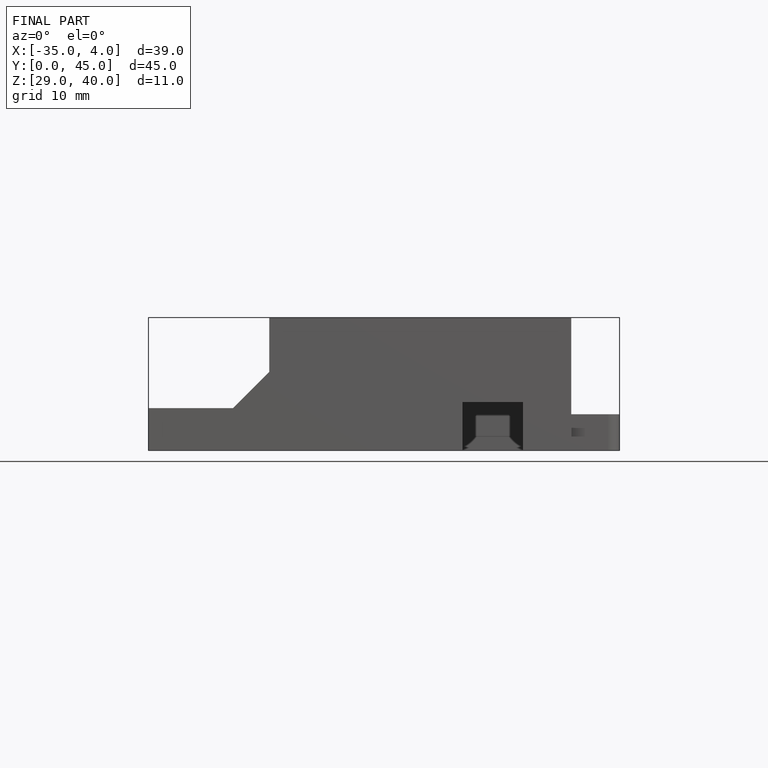
[diagram: finished part — front view with bounding-box wireframe]
